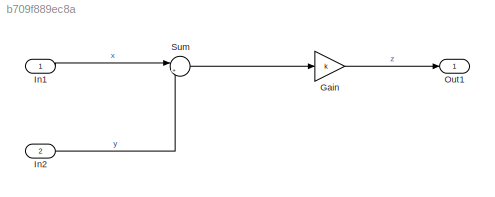
MODEL slx_b709f889ec8a
KIND model
CONFIG AbsTol = auto
CONFIG EnableMultiTasking = off
CONFIG FixedStep = 0.01
CONFIG MaxStep = auto
CONFIG MinStep = auto
CONFIG RelTol = 1e-3
CONFIG SampleTimeConstraint = Unconstrained
CONFIG SolverName = FixedStepDiscrete
CONFIG StartTime = 0.0
CONFIG StopTime = 10.0
BLOCK [Gain] Gain
  Gain = k
BLOCK [Inport] In1
BLOCK [Inport] In2
  Port = 2
BLOCK [Outport] Out1
BLOCK [Sum] Sum
  Inputs = |++
  Ports = [2, 1]
LINE Gain:1 -> Out1:1
LINE In1:1 -> Sum:1
LINE In2:1 -> Sum:2
LINE Sum:1 -> Gain:1
